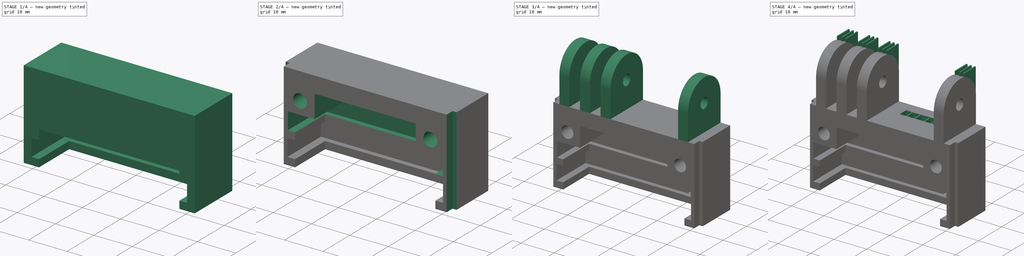
[diagram: build sequence overview — one tinted view per stage of 4, left to right]
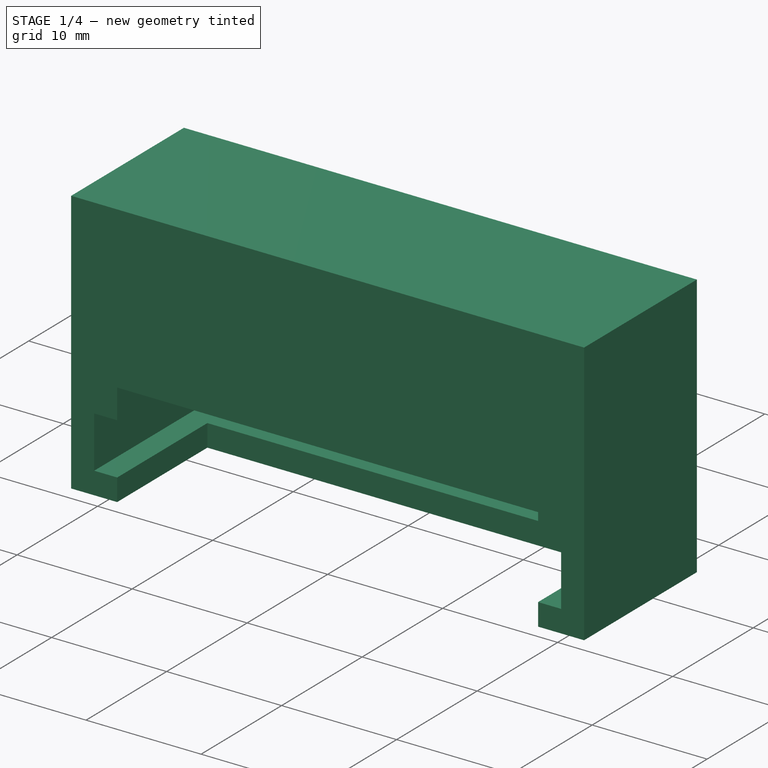
[diagram: stage 1 of 4 — iso view after this stage's code; geometry added in this stage tinted green]
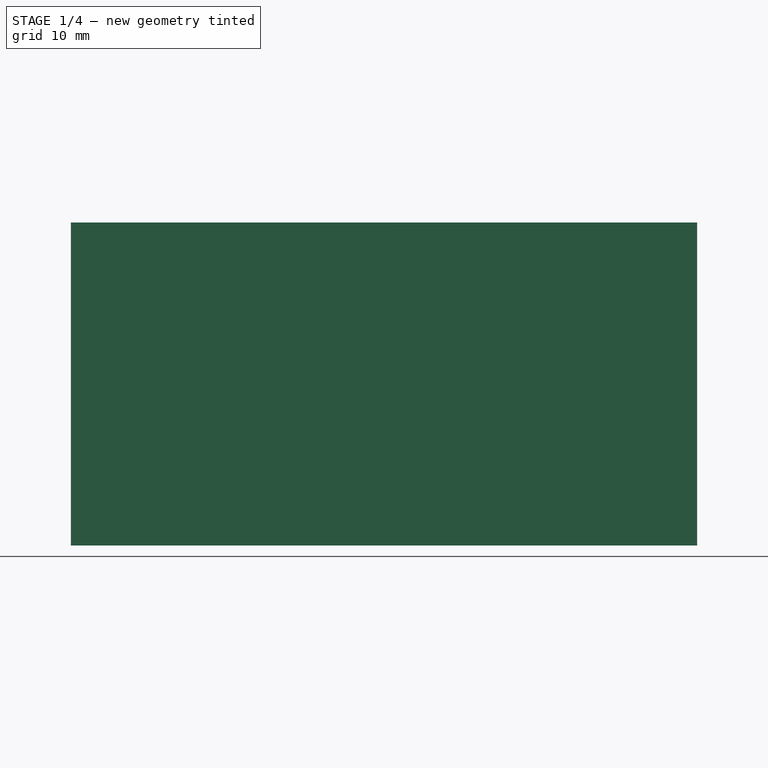
[diagram: stage 1 of 4 — front view after this stage's code; geometry added in this stage tinted green]
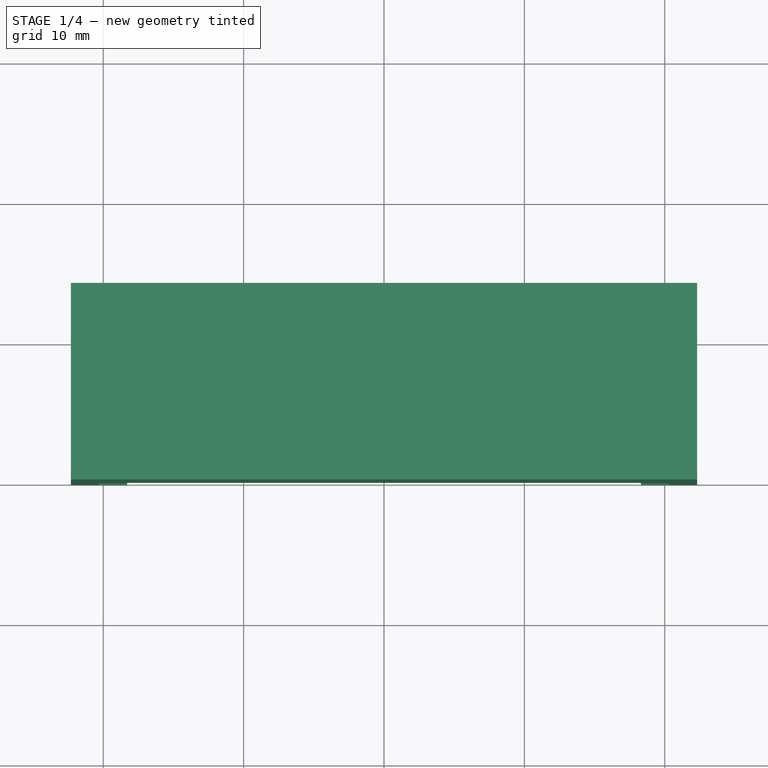
[diagram: stage 1 of 4 — top view after this stage's code; geometry added in this stage tinted green]
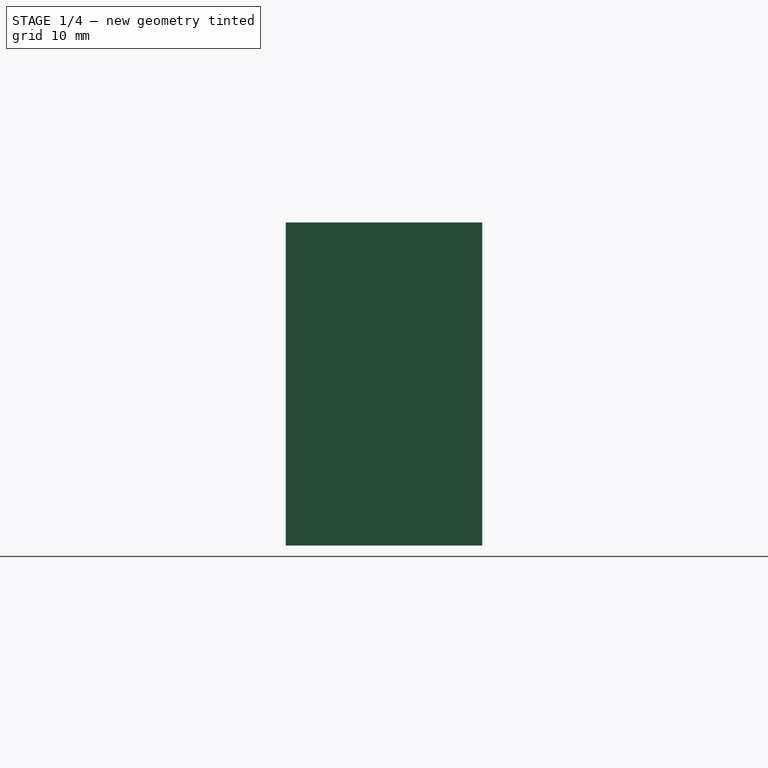
[diagram: stage 1 of 4 — right view after this stage's code; geometry added in this stage tinted green]
FCSTD DOCUMENT  (FreeCAD 0.20R29603 (Git))
Label: dpf_mon_box_donji_sarka
License: All rights reserved
LicenseURL: http://en.wikipedia.org/wiki/All_rights_reserved
objects: Sketcher::SketchObject×11, PartDesign::Pocket×7, PartDesign::Pad×4, PartDesign::Body×1
note: 34 computed .brp shape members not serialized (recipe doc carries the construction recipe); baked Part::Feature solids carry a one-line shape summary decoded from their .brp

FEATURE [Sketcher::SketchObject] Sketch
  FullyConstrained = true
  MapMode = 5
  Support = -> [XY_Plane]
  sketch-geometry (4):
    g0: LineSegment StartX=22.3 StartY=14 StartZ=0 EndX=22.3 EndY=0 EndZ=0
    g1: LineSegment StartX=22.3 StartY=0 StartZ=0 EndX=-22.3 EndY=0 EndZ=0
    g2: LineSegment StartX=-22.3 StartY=0 StartZ=0 EndX=-22.3 EndY=14 EndZ=0
    g3: LineSegment StartX=-22.3 StartY=14 StartZ=0 EndX=22.3 EndY=14 EndZ=0
  constraints (11):
    c: Vertical(g0)
    c: Coincident(g0,g1)
    c: Coincident(g1,g2)
    c: Vertical(g2)
    c: DistanceX(g1,g1) = 44.6
    c: PointOnObject(g-1,g1)
    c: Equal(g0,g2)
    c: DistanceY(g0,g0) = 14
    c: Coincident(g3,g2)
    c: Coincident(g3,g0)
    c: Symmetric(g1,g0,g-2)
FEATURE [PartDesign::Pad] Pad
  Direction = (0,0,1)
  Length = 23
  Length2 = 10
  Profile = -> Sketch
  ReferenceAxis = -> Sketch [N_Axis]
  Type = 0
FEATURE [Sketcher::SketchObject] Sketch001
  FullyConstrained = true
  MapMode = 5
  Placement = pos=(0,0,0) rot=(1,0,0;1.5708rad)
  Support = -> [Pad]
  sketch-geometry (4):
    g0: LineSegment StartX=-20.3 StartY=6.43 StartZ=0 EndX=20.3 EndY=6.43 EndZ=0
    g1: LineSegment StartX=20.3 StartY=6.43 StartZ=0 EndX=20.3 EndY=1.93 EndZ=0
    g2: LineSegment StartX=20.3 StartY=1.93 StartZ=0 EndX=-20.3 EndY=1.93 EndZ=0
    g3: LineSegment StartX=-20.3 StartY=1.93 StartZ=0 EndX=-20.3 EndY=6.43 EndZ=0
  constraints (11):
    c: Coincident(g0,g1)
    c: Coincident(g1,g2)
    c: Coincident(g2,g3)
    c: Coincident(g3,g0)
    c: Horizontal(g0)
    c: Vertical(g1)
    c: Vertical(g3)
    c: DistanceY(g-1,g1) = 1.93
    c: DistanceY(g1,g1) = 4.5
    c: Symmetric(g2,g1,g-2)
    c: DistanceX(g2,g2) = 40.6
FEATURE [PartDesign::Pocket] Pocket
  BaseFeature = -> Pad
  Direction = (0,1,-2e-16)
  Length = 12.5
  Length2 = 5
  Profile = -> Sketch001
  ReferenceAxis = -> Sketch001 [N_Axis]
  Type = 0
FEATURE [Sketcher::SketchObject] Sketch002
  FullyConstrained = true
  MapMode = 5
  Placement = pos=(0,0,0) rot=(1,0,0;3.14159rad)
  Support = -> [Pocket]
  sketch-geometry (4):
    g0: LineSegment StartX=-18.3 StartY=3.62 StartZ=0 EndX=18.3 EndY=3.62 EndZ=0
    g1: LineSegment StartX=18.3 StartY=3.62 StartZ=0 EndX=18.3 EndY=-11.2 EndZ=0
    g2: LineSegment StartX=18.3 StartY=-11.2 StartZ=0 EndX=-18.3 EndY=-11.2 EndZ=0
    g3: LineSegment StartX=-18.3 StartY=-11.2 StartZ=0 EndX=-18.3 EndY=3.62 EndZ=0
  constraints (11):
    c: Coincident(g0,g1)
    c: Coincident(g1,g2)
    c: Coincident(g2,g3)
    c: Coincident(g3,g0)
    c: Horizontal(g0)
    c: Vertical(g1)
    c: Vertical(g3)
    c: Symmetric(g2,g1,g-2)
    c: DistanceY(g1,g-1) = 11.2
    c: DistanceX(g2,g2) = 36.6
    c: DistanceY(g3,g3) = 14.82
FEATURE [PartDesign::Pocket] Pocket001
  BaseFeature = -> Pocket
  Direction = (0,0,1)
  Length = 9
  Length2 = 5
  Profile = -> Sketch002
  ReferenceAxis = -> Sketch002 [N_Axis]
  Type = 0
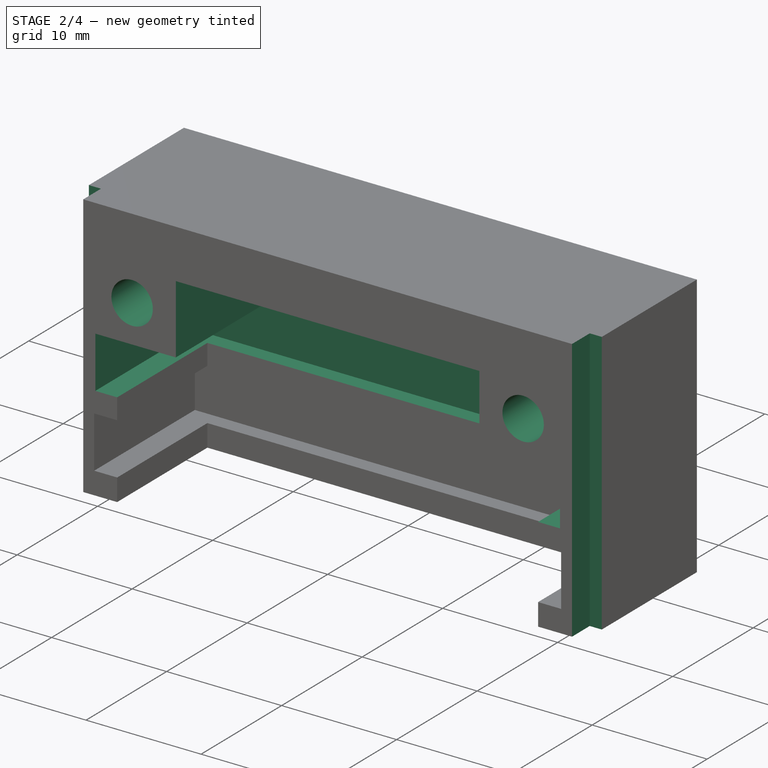
[diagram: stage 2 of 4 — iso view after this stage's code; geometry added in this stage tinted green]
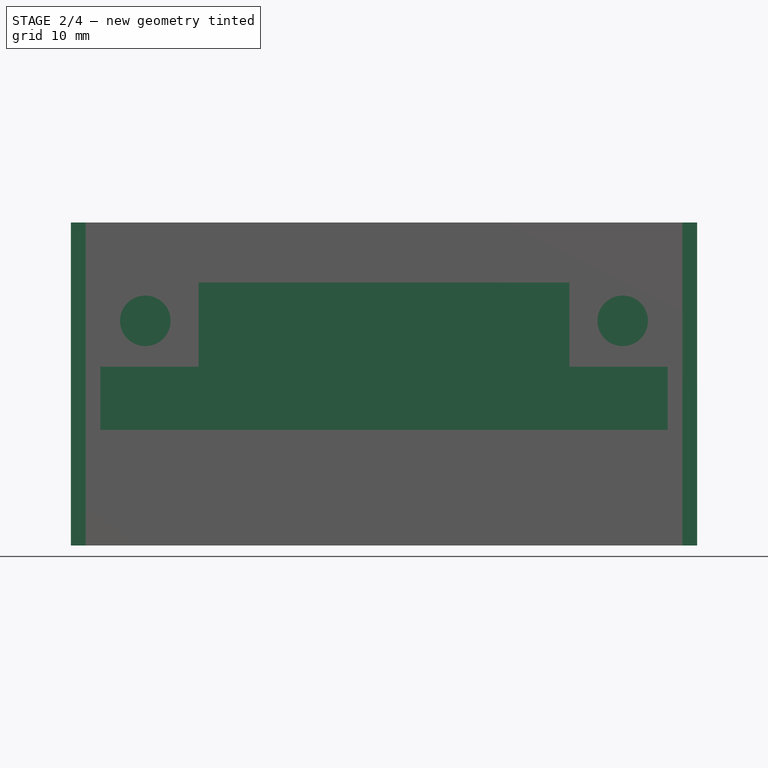
[diagram: stage 2 of 4 — front view after this stage's code; geometry added in this stage tinted green]
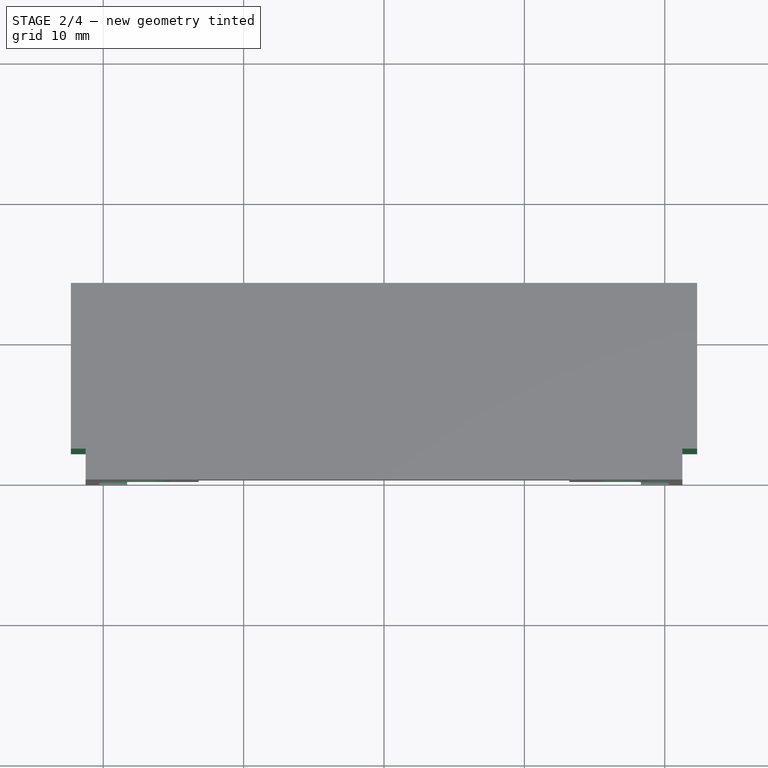
[diagram: stage 2 of 4 — top view after this stage's code; geometry added in this stage tinted green]
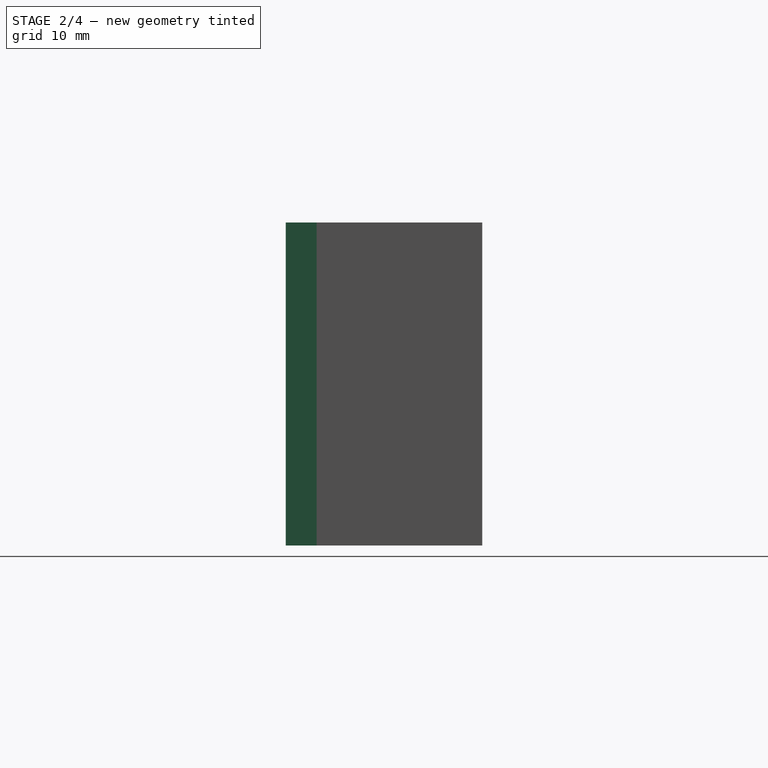
[diagram: stage 2 of 4 — right view after this stage's code; geometry added in this stage tinted green]
FEATURE [Sketcher::SketchObject] Sketch003
  FullyConstrained = true
  MapMode = 5
  Placement = pos=(0,0,0) rot=(1,0,0;1.5708rad)
  Support = -> [Pocket001]
  sketch-geometry (12):
    g0: LineSegment StartX=-13.2 StartY=18.73 StartZ=0 EndX=13.2 EndY=18.73 EndZ=0
    g1: LineSegment StartX=20.2 StartY=12.73 StartZ=0 EndX=20.2 EndY=8.23 EndZ=0
    g2: LineSegment StartX=20.2 StartY=8.23 StartZ=0 EndX=-20.2 EndY=8.23 EndZ=0
    g3: LineSegment StartX=-20.2 StartY=8.23 StartZ=0 EndX=-20.2 EndY=12.73 EndZ=0
    g4: LineSegment StartX=-20.2 StartY=12.73 StartZ=0 EndX=-13.2 EndY=12.73 EndZ=0
    g5: LineSegment StartX=-13.2 StartY=12.73 StartZ=0 EndX=-13.2 EndY=18.73 EndZ=0
    g6: LineSegment StartX=20.2 StartY=12.73 StartZ=0 EndX=13.2 EndY=12.73 EndZ=0
    g7: LineSegment StartX=13.2 StartY=12.73 StartZ=0 EndX=13.2 EndY=18.73 EndZ=0
    g8: LineSegment StartX=-13.2 StartY=18.73 StartZ=0 EndX=-20.2 EndY=18.73 EndZ=0
    g9: LineSegment StartX=13.2 StartY=18.73 StartZ=0 EndX=20.2 EndY=18.73 EndZ=0
    g10: LineSegment StartX=-20.2 StartY=18.73 StartZ=0 EndX=-20.2 EndY=12.73 EndZ=0
    g11: LineSegment StartX=20.2 StartY=12.73 StartZ=0 EndX=20.2 EndY=18.73 EndZ=0
  constraints (33):
    c: Coincident(g1,g2)
    c: Coincident(g2,g3)
    c: Horizontal(g0)
    c: Vertical(g1)
    c: Vertical(g3)
    c: Symmetric(g2,g1,g-2)
    c: DistanceX(g2,g2) = 40.4
    c: DistanceY(g-1,g2) = 8.23
    c: DistanceY(g3,g8) = 10.5
    c: Horizontal(g4)
    c: Coincident(g4,g5)
    c: Vertical(g5)
    c: Horizontal(g6)
    c: Coincident(g6,g7)
    c: Vertical(g7)
    c: Equal(g6,g4)
    c: DistanceX(g4,g4) = 7
    c: DistanceY(g5,g5) = 6
    c: Equal(g7,g5)
    c: Coincident(g0,g5)
    c: Coincident(g0,g7)
    c: Coincident(g8,g0)
    c: Horizontal(g8)
    c: Coincident(g9,g0)
    c: Horizontal(g9)
    c: Coincident(g3,g4)
    c: Coincident(g1,g6)
    c: Coincident(g10,g8)
    c: Coincident(g10,g3)
    c: Vertical(g10)
    c: Coincident(g11,g1)
    c: Coincident(g11,g9)
    c: Vertical(g11)
FEATURE [PartDesign::Pocket] Pocket002
  BaseFeature = -> Pocket001
  Direction = (0,1,-2e-16)
  Length = 12.5
  Length2 = 5
  Profile = -> Sketch003
  ReferenceAxis = -> Sketch003 [N_Axis]
  Type = 0
FEATURE [Sketcher::SketchObject] Sketch004
  FullyConstrained = false
  MapMode = 5
  Placement = pos=(0,0,0) rot=(1,0,0;1.5708rad)
  Support = -> [Pocket002]
  sketch-geometry (8):
    g0: LineSegment StartX=-35.5552 StartY=26.4029 StartZ=0 EndX=-21.25 EndY=26.4029 EndZ=0
    g1: LineSegment StartX=-21.25 StartY=26.4029 StartZ=0 EndX=-21.25 EndY=-10.9935 EndZ=0
    g2: LineSegment StartX=-21.25 StartY=-10.9935 StartZ=0 EndX=-35.5552 EndY=-10.9935 EndZ=0
    g3: LineSegment StartX=-35.5552 StartY=-10.9935 StartZ=0 EndX=-35.5552 EndY=26.4029 EndZ=0
    g4: LineSegment StartX=21.25 StartY=27.7344 StartZ=0 EndX=37.5626 EndY=27.7344 EndZ=0
    g5: LineSegment StartX=37.5626 StartY=27.7344 StartZ=0 EndX=37.5626 EndY=-10.9935 EndZ=0
    g6: LineSegment StartX=37.5626 StartY=-10.9935 StartZ=0 EndX=21.25 EndY=-10.9935 EndZ=0
    g7: LineSegment StartX=21.25 StartY=-10.9935 StartZ=0 EndX=21.25 EndY=27.7344 EndZ=0
  constraints (18):
    c: Coincident(g0,g1)
    c: Coincident(g1,g2)
    c: Coincident(g2,g3)
    c: Coincident(g3,g0)
    c: Horizontal(g0)
    c: Horizontal(g2)
    c: Vertical(g1)
    c: Vertical(g3)
    c: Coincident(g4,g5)
    c: Coincident(g5,g6)
    c: Coincident(g6,g7)
    c: Coincident(g7,g4)
    c: Horizontal(g4)
    c: Horizontal(g6)
    c: Vertical(g5)
    c: Vertical(g7)
    c: Symmetric(g6,g1,g-2)
    c: DistanceX(g1,g6) = 42.5
FEATURE [PartDesign::Pocket] Pocket003
  BaseFeature = -> Pocket002
  Direction = (0,1,-2e-16)
  Length = 2.2
  Length2 = 5
  Profile = -> Sketch004
  ReferenceAxis = -> Sketch004 [N_Axis]
  Type = 0
FEATURE [Sketcher::SketchObject] Sketch005
  FullyConstrained = true
  MapMode = 5
  Placement = pos=(0,0,0) rot=(1,0,0;1.5708rad)
  Support = -> [Pocket003]
  sketch-geometry (2):
    g0: Circle CenterX=-17 CenterY=16 CenterZ=0 NormalX=0 NormalY=0 NormalZ=1 AngleXU=0 Radius=1.8
    g1: Circle CenterX=17 CenterY=16 CenterZ=0 NormalX=0 NormalY=0 NormalZ=1 AngleXU=0 Radius=1.8
  constraints (5):
    c: Equal(g1,g0)
    c: Symmetric(g1,g0,g-2)
    c: DistanceX(g0,g-1) = 17
    c: Diameter(g0) = 3.6
    c: DistanceY(g-1,g0) = 16
FEATURE [PartDesign::Pocket] Pocket004
  BaseFeature = -> Pocket003
  Direction = (0,1,-2e-16)
  Length = 8.5
  Length2 = 5
  Profile = -> Sketch005
  ReferenceAxis = -> Sketch005 [N_Axis]
  Type = 0
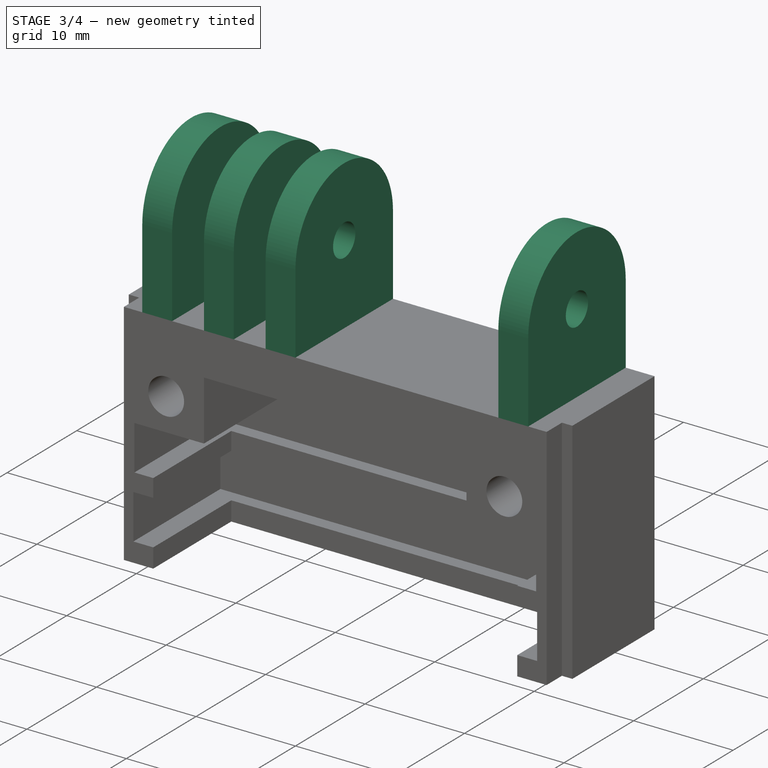
[diagram: stage 3 of 4 — iso view after this stage's code; geometry added in this stage tinted green]
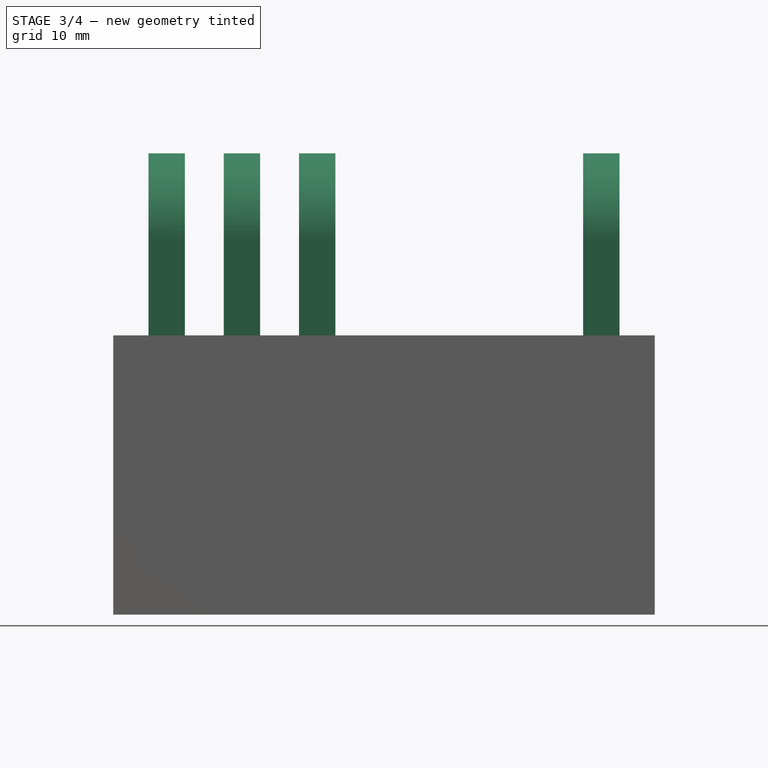
[diagram: stage 3 of 4 — front view after this stage's code; geometry added in this stage tinted green]
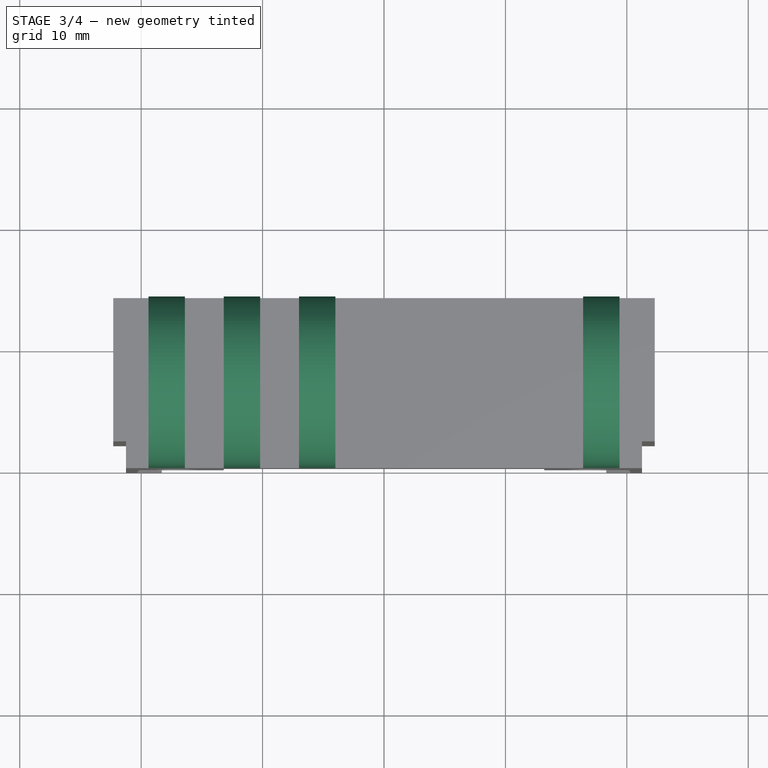
[diagram: stage 3 of 4 — top view after this stage's code; geometry added in this stage tinted green]
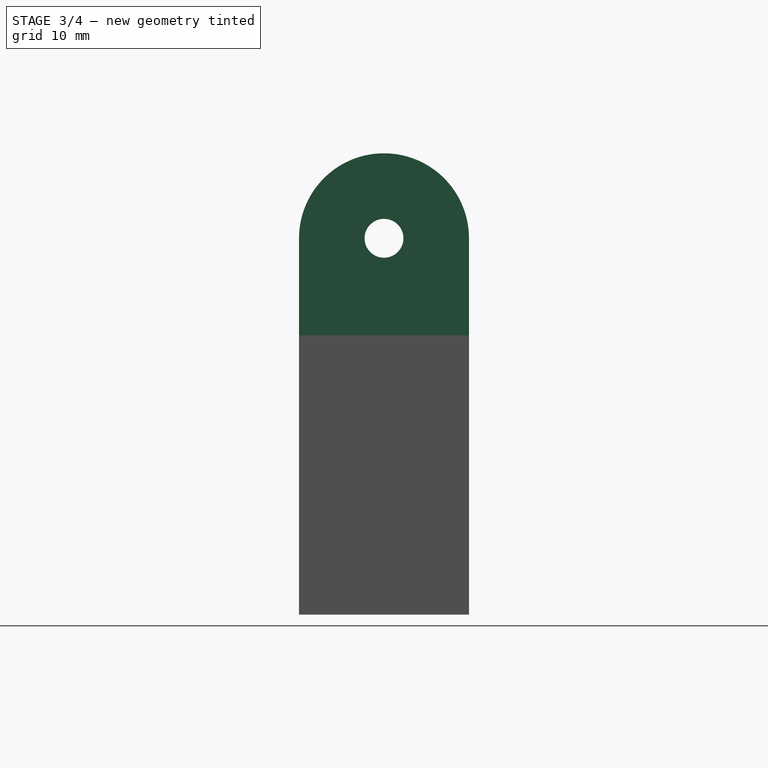
[diagram: stage 3 of 4 — right view after this stage's code; geometry added in this stage tinted green]
FEATURE [Sketcher::SketchObject] Sketch008
  FullyConstrained = true
  MapMode = 5
  Placement = pos=(0,0,23) rot=(0,0,1;0rad)
  Support = -> [Pocket003]
  sketch-geometry (18):
    g0: LineSegment StartX=-19.4 StartY=14 StartZ=0 EndX=19.4 EndY=14 EndZ=0
    g1: LineSegment StartX=19.4 StartY=14 StartZ=0 EndX=19.4 EndY=0 EndZ=0
    g2: LineSegment StartX=19.4 StartY=0 StartZ=0 EndX=-19.4 EndY=0 EndZ=0
    g3: LineSegment StartX=-19.4 StartY=0 StartZ=0 EndX=-19.4 EndY=14 EndZ=0
    g4: LineSegment StartX=16.4 StartY=14 StartZ=0 EndX=16.4 EndY=0 EndZ=0
    g5: LineSegment StartX=16.4 StartY=14 StartZ=0 EndX=19.4 EndY=14 EndZ=0
    g6: LineSegment StartX=16.4 StartY=0 StartZ=0 EndX=19.4 EndY=0 EndZ=0
    g7: LineSegment StartX=-19.4 StartY=14 StartZ=0 EndX=-16.4 EndY=14 EndZ=0
    g8: LineSegment StartX=-16.4 StartY=0 StartZ=0 EndX=-19.4 EndY=0 EndZ=0
    g9: LineSegment StartX=-16.4 StartY=0 StartZ=0 EndX=-16.4 EndY=14 EndZ=0
    g10: LineSegment StartX=-13.2 StartY=14 StartZ=0 EndX=-10.2 EndY=14 EndZ=0
    g11: LineSegment StartX=-10.2 StartY=14 StartZ=0 EndX=-10.2 EndY=0 EndZ=0
    g12: LineSegment StartX=-10.2 StartY=0 StartZ=0 EndX=-13.2 EndY=0 EndZ=0
    g13: LineSegment StartX=-13.2 StartY=0 StartZ=0 EndX=-13.2 EndY=14 EndZ=0
    g14: LineSegment StartX=-7 StartY=14 StartZ=0 EndX=-4 EndY=14 EndZ=0
    g15: LineSegment StartX=-4 StartY=14 StartZ=0 EndX=-4 EndY=0 EndZ=0
    g16: LineSegment StartX=-4 StartY=0 StartZ=0 EndX=-7 EndY=0 EndZ=0
    g17: LineSegment StartX=-7 StartY=0 StartZ=0 EndX=-7 EndY=14 EndZ=0
  constraints (54):
    c: Coincident(g0,g1)
    c: Coincident(g1,g2)
    c: Coincident(g2,g3)
    c: Coincident(g3,g0)
    c: Horizontal(g0)
    c: Vertical(g1)
    c: Vertical(g3)
    c: DistanceX(g2,g2) = 38.8
    c: PointOnObject(g4,g0)
    c: PointOnObject(g4,g2)
    c: Vertical(g4)
    c: Coincident(g5,g4)
    c: Coincident(g5,g1)
    c: Coincident(g6,g4)
    c: Coincident(g6,g1)
    c: DistanceX(g6,g6) = 3
    c: Symmetric(g1,g3,g-2)
    c: DistanceY(g1,g1) = 14
    c: PointOnObject(g-1,g2)
    c: Coincident(g7,g3)
    c: PointOnObject(g7,g0)
    c: PointOnObject(g8,g2)
    c: Coincident(g8,g3)
    c: Coincident(g9,g8)
    c: Coincident(g9,g7)
    c: Vertical(g9)
    c: DistanceX(g8,g8) = 3
    c: Coincident(g10,g11)
    c: Coincident(g11,g12)
    c: Coincident(g12,g13)
    c: Coincident(g13,g10)
    c: Horizontal(g10)
    c: Horizontal(g12)
    c: Vertical(g11)
    c: Vertical(g13)
    c: PointOnObject(g10,g0)
    c: PointOnObject(g11,g2)
    c: Coincident(g14,g15)
    c: Coincident(g15,g16)
    c: Coincident(g16,g17)
    c: Coincident(g17,g14)
    c: Horizontal(g14)
    c: Horizontal(g16)
    c: Vertical(g15)
    c: Vertical(g17)
    c: PointOnObject(g14,g0)
    c: PointOnObject(g15,g2)
    c: DistanceX(g12,g12) = 3
    c: DistanceX(g16,g16) = 3
    c: DistanceX(g8,g12) = 3.2
    c: DistanceX(g11,g16) = 3.2
    c: DistanceX(g15,g1) = 23.4
    c: DistanceX(g11,g1) = 29.6
    c: DistanceX(g8,g1) = 35.8
FEATURE [PartDesign::Pad] Pad001
  BaseFeature = -> Pocket004
  Direction = (0,0,1)
  Length = 20
  Length2 = 10
  Profile = -> Sketch008
  ReferenceAxis = -> Sketch008 [N_Axis]
  Type = 0
FEATURE [Sketcher::SketchObject] Sketch009
  ExternalGeometry = -> [Pad001]
  FullyConstrained = false
  MapMode = 5
  Placement = pos=(19.4,0,0) rot=(0.57735,0.57735,0.57735;2.0944rad)
  Support = -> [Pad001]
  sketch-geometry (8):
    g0: Circle CenterX=7 CenterY=31 CenterZ=0 NormalX=0 NormalY=0 NormalZ=1 AngleXU=0 Radius=1.6
    g1: ArcOfCircle CenterX=7 CenterY=31 CenterZ=0 NormalX=0 NormalY=0 NormalZ=1 AngleXU=0 Radius=7 StartAngle=0 EndAngle=3.14159
    g2: LineSegment StartX=0 StartY=31 StartZ=0 EndX=14 EndY=31 EndZ=0
    g3: LineSegment StartX=14 StartY=31 StartZ=0 EndX=18.7886 EndY=31 EndZ=0
    g4: LineSegment StartX=18.7886 StartY=31 StartZ=0 EndX=15.422 EndY=45.9967 EndZ=0
    g5: LineSegment StartX=15.422 StartY=45.9967 StartZ=0 EndX=-1.67142 EndY=45.9967 EndZ=0
    g6: LineSegment StartX=-1.67142 StartY=45.9967 StartZ=0 EndX=-5.99243 EndY=31 EndZ=0
    g7: LineSegment StartX=-5.99243 StartY=31 StartZ=0 EndX=0 EndY=31 EndZ=0
  constraints (18):
    c: Diameter(g0) = 3.2
    c: DistanceX(g-1,g0) = 7
    c: DistanceY(g-1,g0) = 31
    c: Coincident(g1,g0)
    c: PointOnObject(g1,g-2)
    c: Coincident(g2,g1)
    c: Coincident(g2,g1)
    c: Horizontal(g2)
    c: PointOnObject(g0,g2)
    c: Coincident(g3,g1)
    c: Horizontal(g3)
    c: Coincident(g3,g4)
    c: Coincident(g4,g5)
    c: Horizontal(g5)
    c: Coincident(g5,g6)
    c: Coincident(g6,g7)
    c: Coincident(g7,g1)
    c: Horizontal(g7)
FEATURE [PartDesign::Pocket] Pocket007
  BaseFeature = -> Pad001
  Direction = (-1,0,0)
  Length = 5
  Length2 = 5
  Profile = -> Sketch009
  ReferenceAxis = -> Sketch009 [N_Axis]
  Type = 1
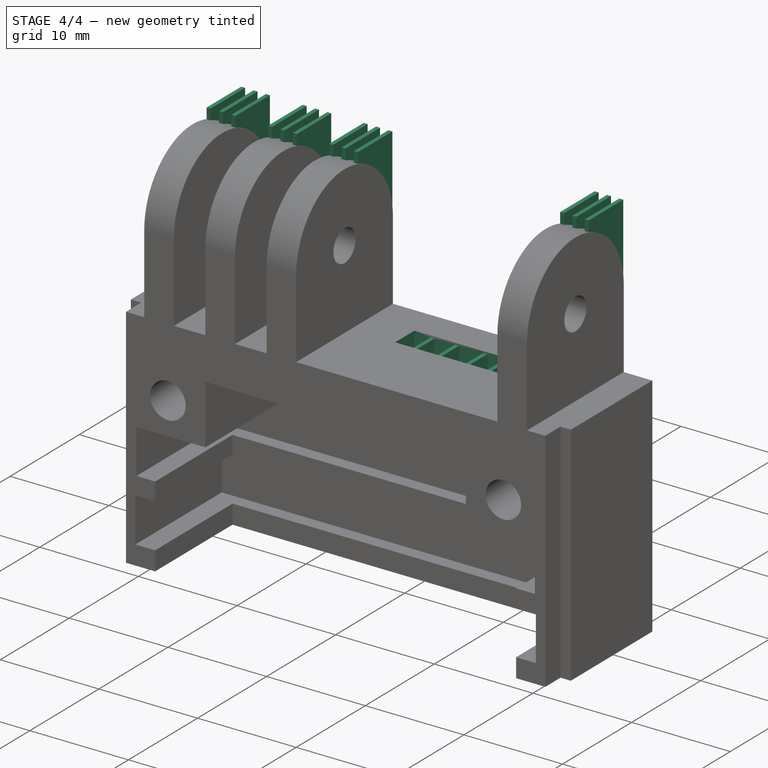
[diagram: stage 4 of 4 — iso view after this stage's code; geometry added in this stage tinted green]
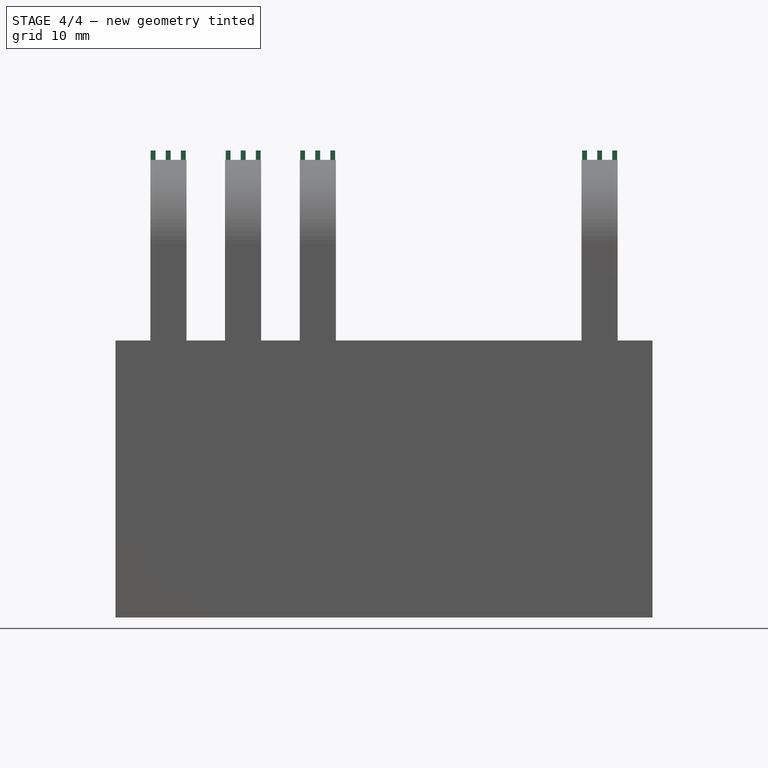
[diagram: stage 4 of 4 — front view after this stage's code; geometry added in this stage tinted green]
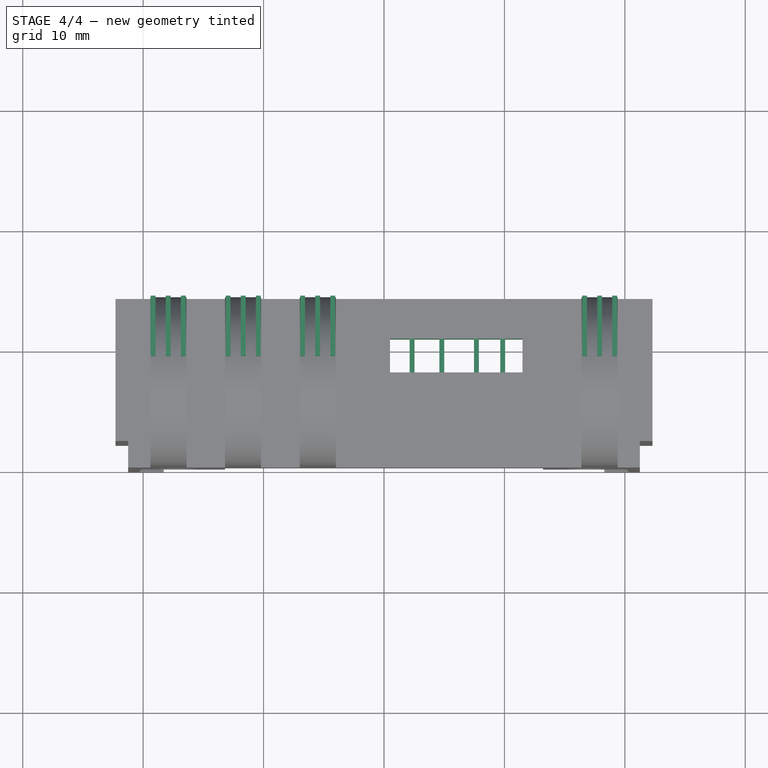
[diagram: stage 4 of 4 — top view after this stage's code; geometry added in this stage tinted green]
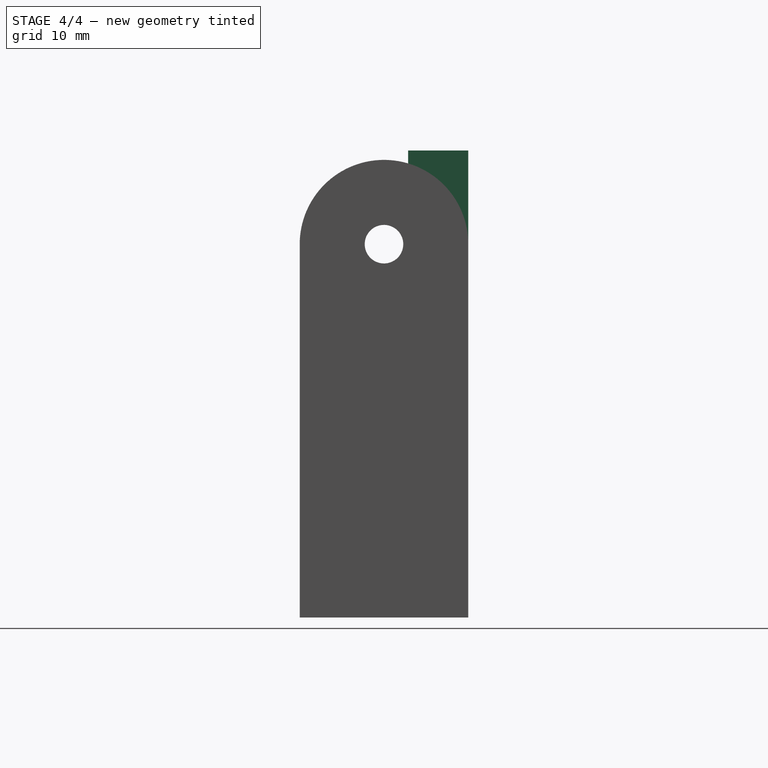
[diagram: stage 4 of 4 — right view after this stage's code; geometry added in this stage tinted green]
FEATURE [Sketcher::SketchObject] Sketch010
  FullyConstrained = true
  MapMode = 5
  Placement = pos=(0,0,23) rot=(0,0,1;0rad)
  Support = -> [Pocket007]
  sketch-geometry (4):
    g0: LineSegment StartX=0.5 StartY=10.7 StartZ=0 EndX=11.5 EndY=10.7 EndZ=0
    g1: LineSegment StartX=11.5 StartY=10.7 StartZ=0 EndX=11.5 EndY=7.9 EndZ=0
    g2: LineSegment StartX=11.5 StartY=7.9 StartZ=0 EndX=0.5 EndY=7.9 EndZ=0
    g3: LineSegment StartX=0.5 StartY=7.9 StartZ=0 EndX=0.5 EndY=10.7 EndZ=0
  constraints (12):
    c: Coincident(g0,g1)
    c: Coincident(g1,g2)
    c: Coincident(g2,g3)
    c: Coincident(g3,g0)
    c: Horizontal(g0)
    c: Horizontal(g2)
    c: Vertical(g1)
    c: Vertical(g3)
    c: DistanceX(g2,g2) = 11
    c: DistanceY(g1,g1) = 2.8
    c: DistanceY(g-1,g2) = 7.9
    c: DistanceX(g-1,g2) = 0.5
FEATURE [PartDesign::Pocket] Pocket008
  BaseFeature = -> Pocket007
  Direction = (0,0,-1)
  Length = 5
  Length2 = 5
  Profile = -> Sketch010
  ReferenceAxis = -> Sketch010 [N_Axis]
  Type = 1
FEATURE [Sketcher::SketchObject] Sketch011
  FullyConstrained = false
  MapMode = 5
  Placement = pos=(0,14,0) rot=(0,0.707107,0.707107;3.14159rad)
  Support = -> [Pocket008]
  sketch-geometry (50):
    g0: LineSegment StartX=-19.3547 StartY=38.78 StartZ=0 EndX=-18.9547 EndY=38.78 EndZ=0
    g1: LineSegment StartX=-18.9547 StartY=38.78 StartZ=0 EndX=-18.9547 EndY=30 EndZ=0
    g2: LineSegment StartX=-18.9547 StartY=30 StartZ=0 EndX=-19.3547 EndY=30 EndZ=0
    g3: LineSegment StartX=-19.3547 StartY=30 StartZ=0 EndX=-19.3547 EndY=38.78 EndZ=0
    g4: LineSegment StartX=-18.9547 StartY=38.78 StartZ=0 EndX=26.1175 EndY=38.78 EndZ=0
    g5: LineSegment StartX=-18.1047 StartY=38.78 StartZ=0 EndX=-17.7047 EndY=38.78 EndZ=0
    g6: LineSegment StartX=-17.7047 StartY=38.78 StartZ=0 EndX=-17.7047 EndY=30 EndZ=0
    g7: LineSegment StartX=-17.7047 StartY=30 StartZ=0 EndX=-18.1047 EndY=30 EndZ=0
    g8: LineSegment StartX=-18.1047 StartY=30 StartZ=0 EndX=-18.1047 EndY=38.78 EndZ=0
    g9: LineSegment StartX=-16.8547 StartY=38.78 StartZ=0 EndX=-16.4547 EndY=38.78 EndZ=0
    g10: LineSegment StartX=-16.4547 StartY=38.78 StartZ=0 EndX=-16.4547 EndY=30 EndZ=0
    g11: LineSegment StartX=-16.4547 StartY=30 StartZ=0 EndX=-16.8547 EndY=30 EndZ=0
    g12: LineSegment StartX=-16.8547 StartY=30 StartZ=0 EndX=-16.8547 EndY=38.78 EndZ=0
    g13: LineSegment StartX=4.05522 StartY=38.78 StartZ=0 EndX=4.45522 EndY=38.78 EndZ=0
    g14: LineSegment StartX=4.45522 StartY=38.78 StartZ=0 EndX=4.45522 EndY=30 EndZ=0
    g15: LineSegment StartX=4.45522 StartY=30 StartZ=0 EndX=4.05522 EndY=30 EndZ=0
    g16: LineSegment StartX=4.05522 StartY=30 StartZ=0 EndX=4.05522 EndY=38.78 EndZ=0
    g17: LineSegment StartX=5.70522 StartY=38.78 StartZ=0 EndX=5.30522 EndY=38.78 EndZ=0
    g18: LineSegment StartX=5.30522 StartY=38.78 StartZ=0 EndX=5.30522 EndY=30 EndZ=0
    g19: LineSegment StartX=5.30522 StartY=30 StartZ=0 EndX=5.70522 EndY=30 EndZ=0
    g20: LineSegment StartX=5.70522 StartY=30 StartZ=0 EndX=5.70522 EndY=38.78 EndZ=0
    g21: LineSegment StartX=6.95522 StartY=38.78 StartZ=0 EndX=6.55522 EndY=38.78 EndZ=0
    g22: LineSegment StartX=6.55522 StartY=38.78 StartZ=0 EndX=6.55522 EndY=30 EndZ=0
    g23: LineSegment StartX=6.55522 StartY=30 StartZ=0 EndX=6.95522 EndY=30 EndZ=0
    g24: LineSegment StartX=6.95522 StartY=30 StartZ=0 EndX=6.95522 EndY=38.78 EndZ=0
    g25: LineSegment StartX=10.2443 StartY=38.78 StartZ=0 EndX=10.6443 EndY=38.78 EndZ=0
    g26: LineSegment StartX=10.6443 StartY=38.78 StartZ=0 EndX=10.6443 EndY=30 EndZ=0
    g27: LineSegment StartX=10.6443 StartY=30 StartZ=0 EndX=10.2443 EndY=30 EndZ=0
    g28: LineSegment StartX=10.2443 StartY=30 StartZ=0 EndX=10.2443 EndY=38.78 EndZ=0
    g29: LineSegment StartX=11.4943 StartY=38.78 StartZ=0 EndX=11.8943 EndY=38.78 EndZ=0
    g30: LineSegment StartX=11.8943 StartY=38.78 StartZ=0 EndX=11.8943 EndY=30 EndZ=0
    g31: LineSegment StartX=11.8943 StartY=30 StartZ=0 EndX=11.4943 EndY=30 EndZ=0
    g32: LineSegment StartX=11.4943 StartY=30 StartZ=0 EndX=11.4943 EndY=38.78 EndZ=0
    g33: LineSegment StartX=-18.9547 StartY=30 StartZ=0 EndX=26.503 EndY=30 EndZ=0
    g34: LineSegment StartX=12.7443 StartY=38.78 StartZ=0 EndX=13.1443 EndY=38.78 EndZ=0
    g35: LineSegment StartX=13.1443 StartY=38.78 StartZ=0 EndX=13.1443 EndY=30 EndZ=0
    g36: LineSegment StartX=13.1443 StartY=30 StartZ=0 EndX=12.7443 EndY=30 EndZ=0
    g37: LineSegment StartX=12.7443 StartY=30 StartZ=0 EndX=12.7443 EndY=38.78 EndZ=0
    g38: LineSegment StartX=16.467 StartY=38.78 StartZ=0 EndX=16.867 EndY=38.78 EndZ=0
    g39: LineSegment StartX=16.867 StartY=38.78 StartZ=0 EndX=16.867 EndY=30 EndZ=0
    g40: LineSegment StartX=16.867 StartY=30 StartZ=0 EndX=16.467 EndY=30 EndZ=0
    g41: LineSegment StartX=16.467 StartY=30 StartZ=0 EndX=16.467 EndY=38.78 EndZ=0
    g42: LineSegment StartX=18.1223 StartY=38.78 StartZ=0 EndX=17.7223 EndY=38.78 EndZ=0
    g43: LineSegment StartX=17.7223 StartY=38.78 StartZ=0 EndX=17.7223 EndY=30 EndZ=0
    g44: LineSegment StartX=17.7223 StartY=30 StartZ=0 EndX=18.1223 EndY=30 EndZ=0
    g45: LineSegment StartX=18.1223 StartY=30 StartZ=0 EndX=18.1223 EndY=38.78 EndZ=0
    g46: LineSegment StartX=18.9751 StartY=38.78 StartZ=0 EndX=19.3751 EndY=38.78 EndZ=0
    g47: LineSegment StartX=19.3751 StartY=38.78 StartZ=0 EndX=19.3751 EndY=30 EndZ=0
    g48: LineSegment StartX=19.3751 StartY=30 StartZ=0 EndX=18.9751 EndY=30 EndZ=0
    g49: LineSegment StartX=18.9751 StartY=30 StartZ=0 EndX=18.9751 EndY=38.78 EndZ=0
  constraints (143):
    c: Coincident(g0,g1)
    c: Coincident(g1,g2)
    c: Coincident(g2,g3)
    c: Coincident(g3,g0)
    c: Horizontal(g0)
    c: Horizontal(g2)
    c: Vertical(g1)
    c: Vertical(g3)
    c: Coincident(g4,g0)
    c: Horizontal(g4)
    c: Coincident(g5,g6)
    c: Coincident(g6,g7)
    c: Coincident(g7,g8)
    c: Coincident(g8,g5)
    c: Horizontal(g5)
    c: Horizontal(g7)
    c: Vertical(g6)
    c: Vertical(g8)
    c: PointOnObject(g5,g4)
    c: Coincident(g9,g10)
    c: Coincident(g10,g11)
    c: Coincident(g11,g12)
    c: Coincident(g12,g9)
    c: Horizontal(g9)
    c: Horizontal(g11)
    c: Vertical(g10)
    c: Vertical(g12)
    c: PointOnObject(g9,g4)
    c: Coincident(g13,g14)
    c: Coincident(g14,g15)
    c: Coincident(g15,g16)
    c: Coincident(g16,g13)
    c: Horizontal(g13)
    c: Horizontal(g15)
    c: Vertical(g14)
    c: Vertical(g16)
    c: PointOnObject(g13,g4)
    c: Coincident(g17,g18)
    c: Coincident(g18,g19)
    c: Coincident(g19,g20)
    c: Coincident(g20,g17)
    c: Horizontal(g17)
    c: Horizontal(g19)
    c: Vertical(g18)
    c: Vertical(g20)
    c: PointOnObject(g17,g4)
    c: Coincident(g21,g22)
    c: Coincident(g22,g23)
    c: Coincident(g23,g24)
    c: Coincident(g24,g21)
    c: Horizontal(g21)
    c: Horizontal(g23)
    c: Vertical(g22)
    c: Vertical(g24)
    c: PointOnObject(g21,g4)
    c: Coincident(g25,g26)
    c: Coincident(g26,g27)
    c: Coincident(g27,g28)
    c: Coincident(g28,g25)
    c: Horizontal(g25)
    c: Horizontal(g27)
    c: Vertical(g26)
    c: Vertical(g28)
    c: PointOnObject(g25,g4)
    c: Coincident(g29,g30)
    c: Coincident(g30,g31)
    c: Coincident(g31,g32)
    c: Coincident(g32,g29)
    c: Horizontal(g29)
    c: Horizontal(g31)
    c: Vertical(g30)
    c: Vertical(g32)
    c: PointOnObject(g29,g4)
    c: Equal(g2,g7)
    c: Equal(g7,g11)
    c: Equal(g11,g15)
    c: Equal(g15,g19)
    c: Equal(g19,g23)
    c: Equal(g23,g27)
    c: Equal(g27,g31)
    c: DistanceX(g2,g2) = 0.4
    c: Coincident(g33,g1)
    c: Horizontal(g33)
    c: PointOnObject(g7,g33)
    c: PointOnObject(g11,g33)
    c: PointOnObject(g15,g33)
    c: PointOnObject(g18,g33)
    c: PointOnObject(g22,g33)
    c: PointOnObject(g27,g33)
    c: PointOnObject(g31,g33)
    c: DistanceY(g-1,g33) = 30
    c: DistanceY(g33,g4) = 8.78
    c: Coincident(g34,g35)
    c: Coincident(g35,g36)
    c: Coincident(g36,g37)
    c: Coincident(g37,g34)
    c: Horizontal(g34)
    c: Horizontal(g36)
    c: Vertical(g35)
    c: Vertical(g37)
    c: PointOnObject(g34,g4)
    c: PointOnObject(g35,g33)
    c: Coincident(g38,g39)
    c: Coincident(g39,g40)
    c: Coincident(g40,g41)
    c: Coincident(g41,g38)
    c: Horizontal(g38)
    c: Horizontal(g40)
    c: Vertical(g39)
    c: Vertical(g41)
    c: PointOnObject(g38,g4)
    c: PointOnObject(g39,g33)
    c: Coincident(g42,g43)
    c: Coincident(g43,g44)
    c: Coincident(g44,g45)
    c: Coincident(g45,g42)
    c: Horizontal(g42)
    c: Horizontal(g44)
    c: Vertical(g43)
    c: Vertical(g45)
    c: PointOnObject(g42,g4)
    c: PointOnObject(g43,g33)
    c: Coincident(g46,g47)
    c: Coincident(g47,g48)
    c: Coincident(g48,g49)
    c: Coincident(g49,g46)
    c: Horizontal(g46)
    c: Horizontal(g48)
    c: Vertical(g47)
    c: Vertical(g49)
    c: PointOnObject(g46,g4)
    c: PointOnObject(g47,g33)
    c: Equal(g31,g36)
    c: Equal(g36,g40)
    c: Equal(g40,g44)
    c: Equal(g44,g48)
    c: DistanceX(g2,g10) = 2.9
    c: DistanceX(g1,g7) = 0.85
    c: DistanceX(g6,g11) = 0.85
    c: DistanceX(g15,g23) = 2.9
    c: DistanceX(g14,g18) = 0.85
    c: DistanceX(g27,g35) = 2.9
    c: DistanceX(g26,g31) = 0.85
FEATURE [PartDesign::Pad] Pad002
  BaseFeature = -> Pocket008
  Direction = (0,1,-2e-16)
  Length = 5
  Length2 = 10
  Profile = -> Sketch011
  ReferenceAxis = -> Sketch011 [N_Axis]
  Reversed = true
  Type = 0
FEATURE [Sketcher::SketchObject] Sketch012
  FullyConstrained = false
  MapMode = 5
  Placement = pos=(0,10.7,0) rot=(1,0,0;1.5708rad)
  Support = -> [Pad002]
  sketch-geometry (18):
    g0: LineSegment StartX=-1.12341 StartY=22.8153 StartZ=0 EndX=13.0016 EndY=22.8153 EndZ=0
    g1: LineSegment StartX=12.4814 StartY=18.9654 StartZ=0 EndX=-0.160937 EndY=18.9654 EndZ=0
    g2: LineSegment StartX=2.13141 StartY=22.8153 StartZ=0 EndX=2.53141 EndY=22.8153 EndZ=0
    g3: LineSegment StartX=2.53141 StartY=22.8153 StartZ=0 EndX=2.53141 EndY=18.9654 EndZ=0
    g4: LineSegment StartX=2.53141 StartY=18.9654 StartZ=0 EndX=2.13141 EndY=18.9654 EndZ=0
    g5: LineSegment StartX=2.13141 StartY=18.9654 StartZ=0 EndX=2.13141 EndY=22.8153 EndZ=0
    g6: LineSegment StartX=4.603 StartY=22.8153 StartZ=0 EndX=5.003 EndY=22.8153 EndZ=0
    g7: LineSegment StartX=5.003 StartY=22.8153 StartZ=0 EndX=5.003 EndY=18.9654 EndZ=0
    g8: LineSegment StartX=5.003 StartY=18.9654 StartZ=0 EndX=4.603 EndY=18.9654 EndZ=0
    g9: LineSegment StartX=4.603 StartY=18.9654 StartZ=0 EndX=4.603 EndY=22.8153 EndZ=0
    g10: LineSegment StartX=7.47862 StartY=22.8153 StartZ=0 EndX=7.87862 EndY=22.8153 EndZ=0
    g11: LineSegment StartX=7.87862 StartY=22.8153 StartZ=0 EndX=7.87862 EndY=18.9654 EndZ=0
    g12: LineSegment StartX=7.87862 StartY=18.9654 StartZ=0 EndX=7.47862 EndY=18.9654 EndZ=0
    g13: LineSegment StartX=7.47862 StartY=18.9654 StartZ=0 EndX=7.47862 EndY=22.8153 EndZ=0
    g14: LineSegment StartX=9.65584 StartY=22.8153 StartZ=0 EndX=10.0558 EndY=22.8153 EndZ=0
    g15: LineSegment StartX=10.0558 StartY=22.8153 StartZ=0 EndX=10.0558 EndY=18.9654 EndZ=0
    g16: LineSegment StartX=10.0558 StartY=18.9654 StartZ=0 EndX=9.65584 EndY=18.9654 EndZ=0
    g17: LineSegment StartX=9.65584 StartY=18.9654 StartZ=0 EndX=9.65584 EndY=22.8153 EndZ=0
  constraints (46):
    c: Horizontal(g0)
    c: Horizontal(g1)
    c: Coincident(g2,g3)
    c: Coincident(g3,g4)
    c: Coincident(g4,g5)
    c: Coincident(g5,g2)
    c: Horizontal(g2)
    c: Horizontal(g4)
    c: Vertical(g3)
    c: Vertical(g5)
    c: PointOnObject(g2,g0)
    c: PointOnObject(g3,g1)
    c: Coincident(g6,g7)
    c: Coincident(g7,g8)
    c: Coincident(g8,g9)
    c: Coincident(g9,g6)
    c: Horizontal(g6)
    c: Horizontal(g8)
    c: Vertical(g7)
    c: Vertical(g9)
    c: PointOnObject(g6,g0)
    c: PointOnObject(g7,g1)
    c: Coincident(g10,g11)
    c: Coincident(g11,g12)
    c: Coincident(g12,g13)
    c: Coincident(g13,g10)
    c: Horizontal(g10)
    c: Horizontal(g12)
    c: Vertical(g11)
    c: Vertical(g13)
    c: PointOnObject(g10,g0)
    c: PointOnObject(g11,g1)
    c: Coincident(g14,g15)
    c: Coincident(g15,g16)
    c: Coincident(g16,g17)
    c: Coincident(g17,g14)
    c: Horizontal(g14)
    c: Horizontal(g16)
    c: Vertical(g15)
    c: Vertical(g17)
    c: PointOnObject(g14,g0)
    c: PointOnObject(g15,g1)
    c: Equal(g4,g8)
    c: Equal(g8,g12)
    c: Equal(g12,g16)
    c: DistanceX(g4,g4) = 0.4
FEATURE [PartDesign::Pad] Pad003
  BaseFeature = -> Pad002
  Direction = (0,-1,2e-16)
  Length = 4
  Length2 = 10
  Profile = -> Sketch012
  ReferenceAxis = -> Sketch012 [N_Axis]
  Type = 0
FEATURE [PartDesign::Body] Body
  Group = -> [Sketch,Pad,Sketch001,Pocket,Sketch002,Pocket001,Sketch003,Pocket002,Sketch004,Pocket003,Sketch005,Pocket004,Sketch008,Pad001,Sketch009,Pocket007,Sketch010,Pocket008,Sketch011,Pad002,Sketch012,Pad003]
  Origin = -> Origin
  Tip = -> Pad003
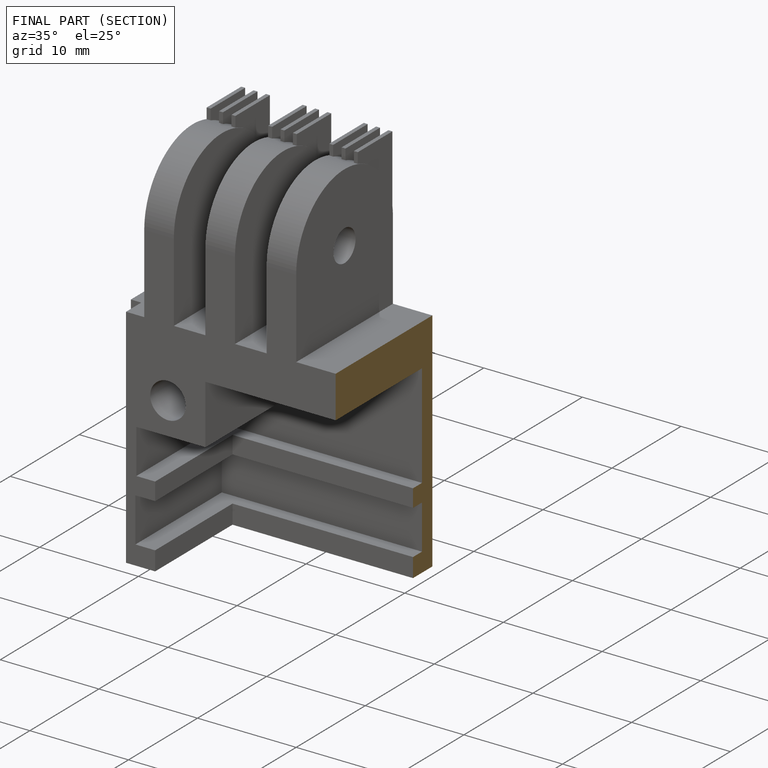
[diagram: finished part — half-section view (interior)]
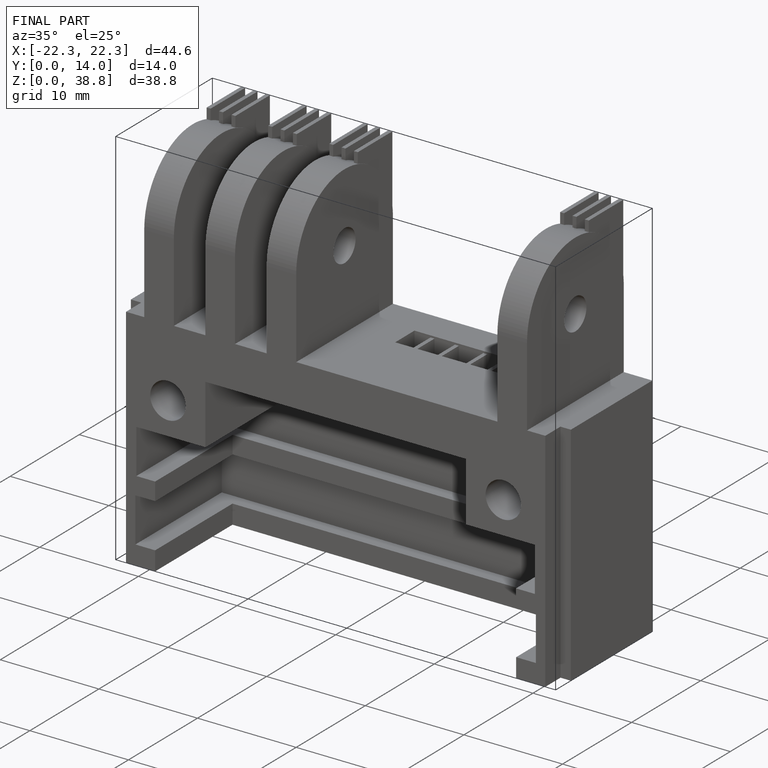
[diagram: finished part — iso view with bounding-box wireframe]
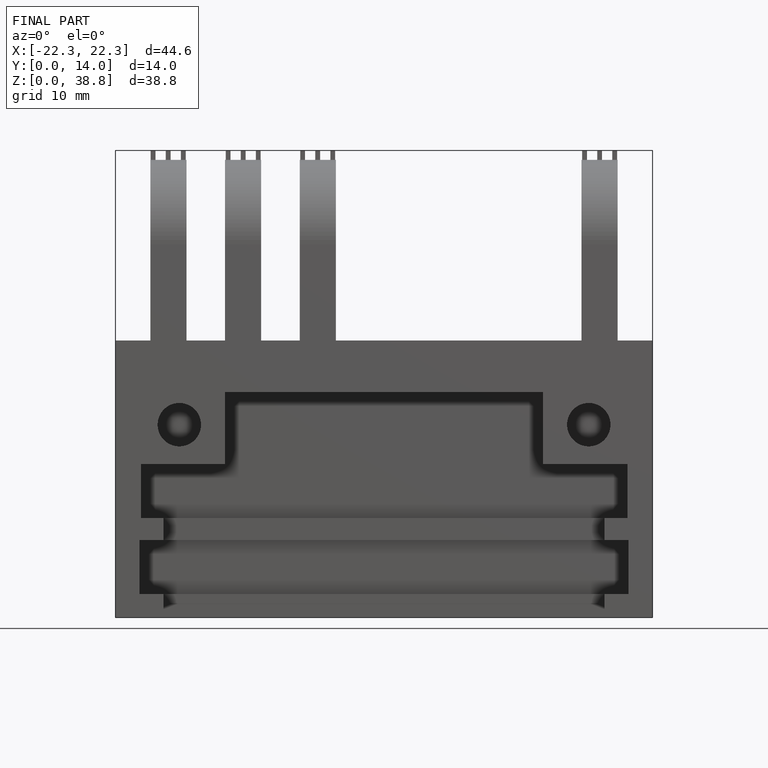
[diagram: finished part — front view with bounding-box wireframe]
